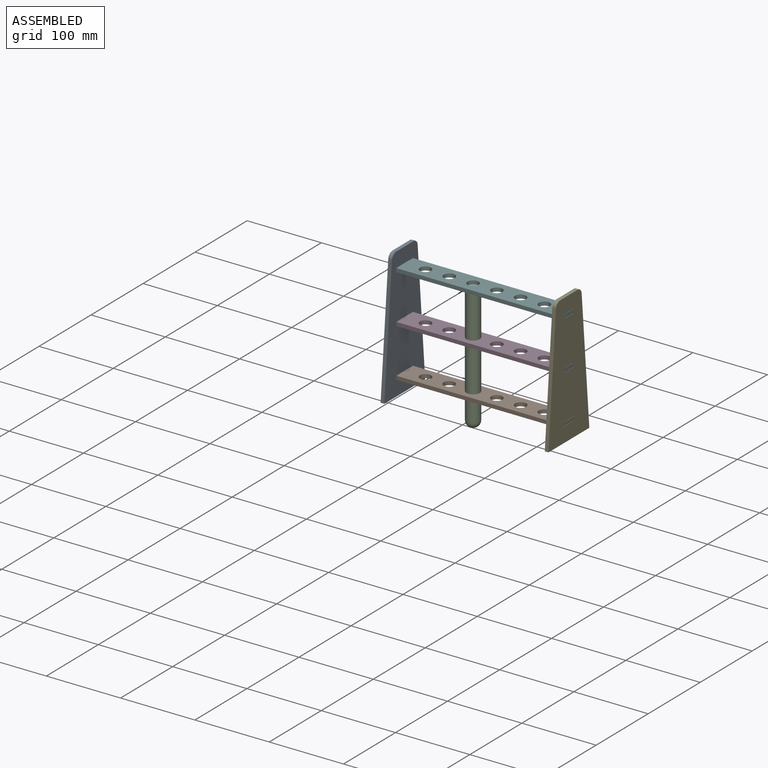
[diagram: assembled view]
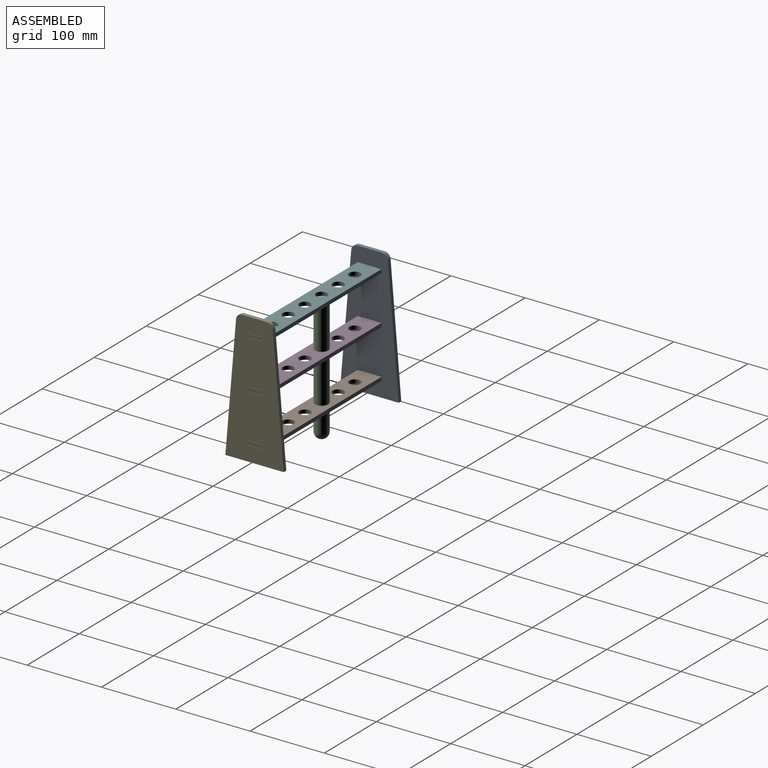
[diagram: assembled view, second angle]
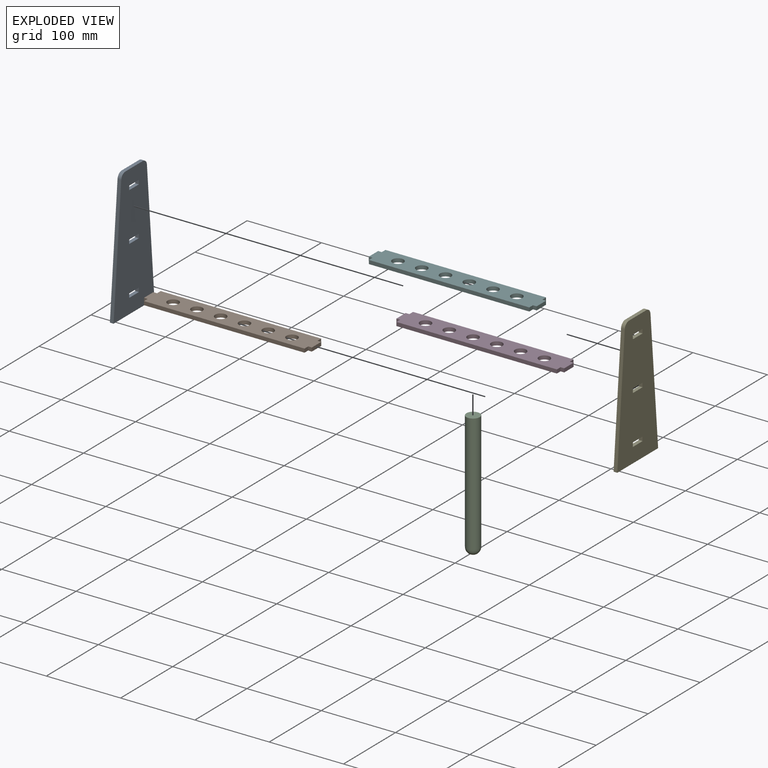
[diagram: exploded view]
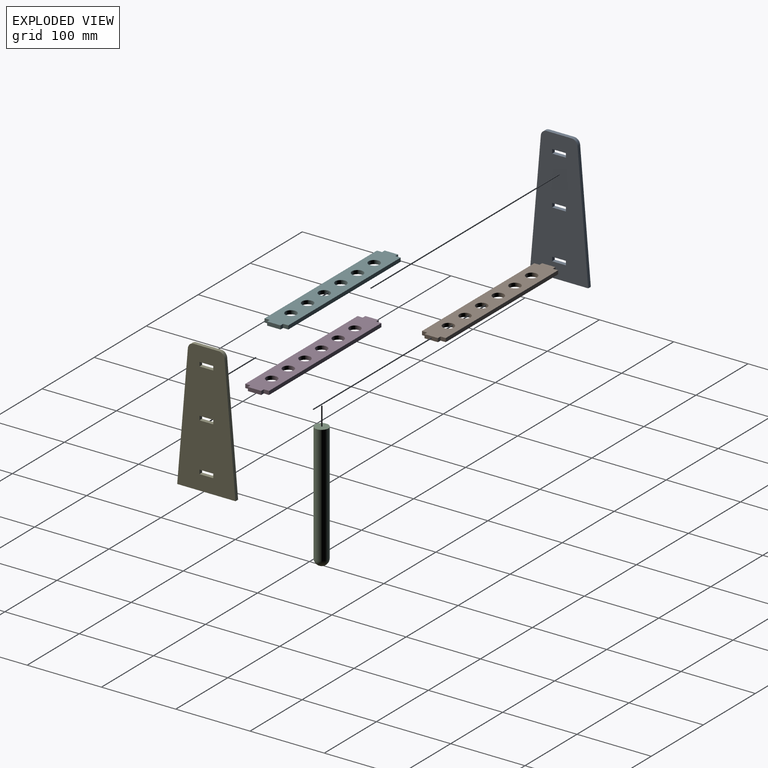
[diagram: exploded view, second angle]
ASSEMBLY  parts=6 mates=5
PART A: 20 faces, bbox 78.5x176.5x5 mm
  f0: plane 18.5x5mm, normal (0,1,0), area 92.5mm2, adj f1,f17,f18,f19
  f1: plane 5.5x5mm, normal (1,0,0), area 27.5mm2, adj f0,f2,f18,f19
  f2: plane 18.5x5mm, normal (0,-1,0), area 92.5mm2, adj f1,f17,f18,f19
  f3: plane 18.5x5mm, normal (0,1,0), area 92.5mm2, adj f4,f14,f18,f19
  f4: plane 5.5x5mm, normal (1,0,0), area 27.5mm2, adj f3,f5,f18,f19
  f5: plane 18.5x5mm, normal (0,-1,0), area 92.5mm2, adj f4,f14,f18,f19
  f6: plane 5.5x5mm, normal (1,0,0), area 27.5mm2, adj f7,f15,f18,f19
  f7: plane 18.5x5mm, normal (0,-1,0), area 92.5mm2, adj f6,f8,f18,f19
  f8: plane 5.5x5mm, normal (-1,0,0), area 27.5mm2, adj f7,f15,f18,f19
  f9: plane 33.46x5mm, normal (0,1,0), area 167.3mm2, adj f10,f16,f18,f19
  f10: cylinder r=8mm len=7.97mm, axis (0,0,-1), area 59.4mm2, adj f9,f11,f18,f19
  f11: plane 169.18x14.38mm, normal (-1,0.08,0), area 848.9mm2, adj f10,f12,f18,f19
  f12: plane 78.5x5mm, normal (0,-1,0), area 392.5mm2, adj f11,f13,f18,f19
  f13: plane 169.19x14.72mm, normal (1,0.09,0), area 849.2mm2, adj f12,f16,f18,f19
  f14: plane 5.5x5mm, normal (-1,0,0), area 27.5mm2, adj f3,f5,f18,f19
  f15: plane 18.5x5mm, normal (0,1,0), area 92.5mm2, adj f6,f8,f18,f19
  f16: cylinder r=8mm len=7.97mm, axis (0,0,-1), area 59.4mm2, adj f9,f13,f18,f19
  f17: plane 5.5x5mm, normal (-1,0,0), area 27.5mm2, adj f0,f2,f18,f19
  f18: plane 176.5x78.5mm, normal (0,0,1), area 10848.8mm2, adj f0,f1,f2,f3,f4,f5,f6,f7
  f19: plane 176.5x78.5mm, normal (0,0,-1), area 10848.8mm2, adj f0,f1,f2,f3,f4,f5,f6,f7
PART B: 20 faces, bbox 226x32x5 mm
  f0: plane 5x5mm, normal (0,-1,0), area 25mm2, adj f1,f16,f18,f19
  f1: plane 7x5mm, normal (-1,0,0), area 35mm2, adj f0,f2,f18,f19
  f2: plane 216x5mm, normal (0,-1,0), area 1080mm2, adj f1,f3,f18,f19
  f3: plane 7x5mm, normal (1,0,0), area 35mm2, adj f2,f4,f18,f19
  f4: plane 5x5mm, normal (0,-1,0), area 25mm2, adj f3,f5,f18,f19
  f5: plane 18x5mm, normal (1,0,0), area 90mm2, adj f4,f6,f18,f19
  f6: plane 5x5mm, normal (0,1,0), area 25mm2, adj f5,f7,f18,f19
  f7: plane 7x5mm, normal (1,0,0), area 35mm2, adj f6,f8,f18,f19
  f8: plane 216x5mm, normal (0,1,0), area 1080mm2, adj f7,f9,f18,f19
  f9: plane 7x5mm, normal (-1,0,0), area 35mm2, adj f8,f10,f18,f19
  f10: plane 5x5mm, normal (0,1,0), area 25mm2, adj f9,f16,f18,f19
  f11: cylinder r=7.5mm len=15mm, axis (0,0,-1), area 235.6mm2, adj f18,f19
  f12: cylinder r=7.5mm len=15mm, axis (0,0,-1), area 235.6mm2, adj f18,f19
  f13: cylinder r=7.5mm len=15mm, axis (0,0,-1), area 235.6mm2, adj f18,f19
  f14: cylinder r=7.5mm len=15mm, axis (0,0,-1), area 235.6mm2, adj f18,f19
  f15: cylinder r=7.5mm len=15mm, axis (0,0,-1), area 235.6mm2, adj f18,f19
  f16: plane 18x5mm, normal (-1,0,0), area 90mm2, adj f0,f10,f18,f19
  f17: cylinder r=7.5mm len=15mm, axis (0,0,-1), area 235.6mm2, adj f18,f19
  f18: plane 226x32mm, normal (0,0,1), area 6031.7mm2, adj f0,f1,f2,f3,f4,f5,f6,f7
  f19: plane 226x32mm, normal (0,0,-1), area 6031.7mm2, adj f0,f1,f2,f3,f4,f5,f6,f7
PART C: 3 faces, bbox 18x169x18 mm
  f0: sphere r=9mm, area 508.9mm2, adj f1
  f1: cylinder r=9mm len=160mm, axis (0,1,0), area 9047.8mm2, adj f0,f2
  f2: plane 18x18mm, normal (0,1,0), area 254.5mm2, adj f1
PART D: same geometry as B
PART E: same geometry as A
PART F: same geometry as B
PLACE A rot(axis=(0.58,-0.58,-0.58),120deg) t=(-83.33,-1.51,-61.25)mm
PLACE B t=(1.73,-15.79,-120)mm
PLACE C rot(axis=(1,0,0),90deg) t=(44.8,22.38,-119.59)mm
PLACE D t=(1.73,-15.79,-54.5)mm
PLACE E rot(axis=(0.58,0.58,0.58),120deg) t=(132.67,46.28,-61.25)mm
PLACE F t=(1.73,-15.79,11)mm
MATE fastened B.f5 <-> E.f18  axis (1,0,0) through (137.67,22.38,-117.5)mm
MATE fastened F.f5 <-> E.f18  axis (1,0,0) through (137.67,22.38,13.5)mm
MATE slider C.f1 <-> F.f12  axis (0,0,1) through (8.67,22.38,-69.98)mm
MATE fastened D.f5 <-> E.f18  axis (1,0,0) through (137.67,22.38,-52)mm
MATE fastened F.f16 <-> A.f18  axis (-1,0,0) through (-88.33,22.38,13.5)mm
